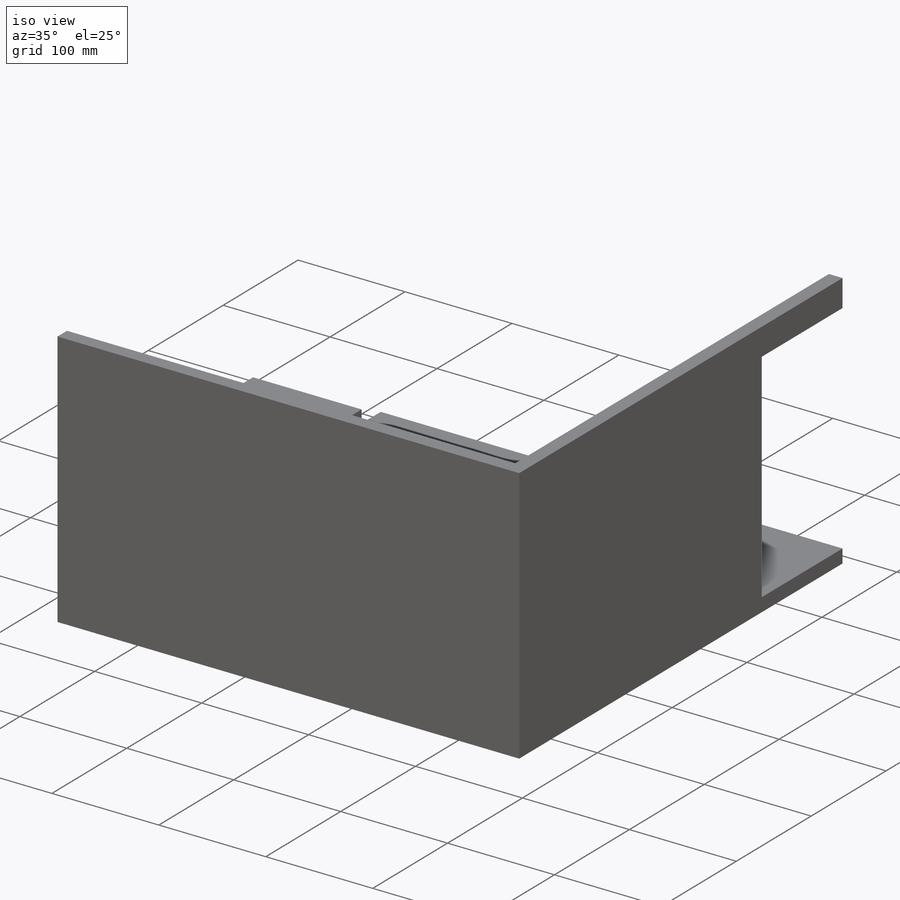
[diagram: iso view]
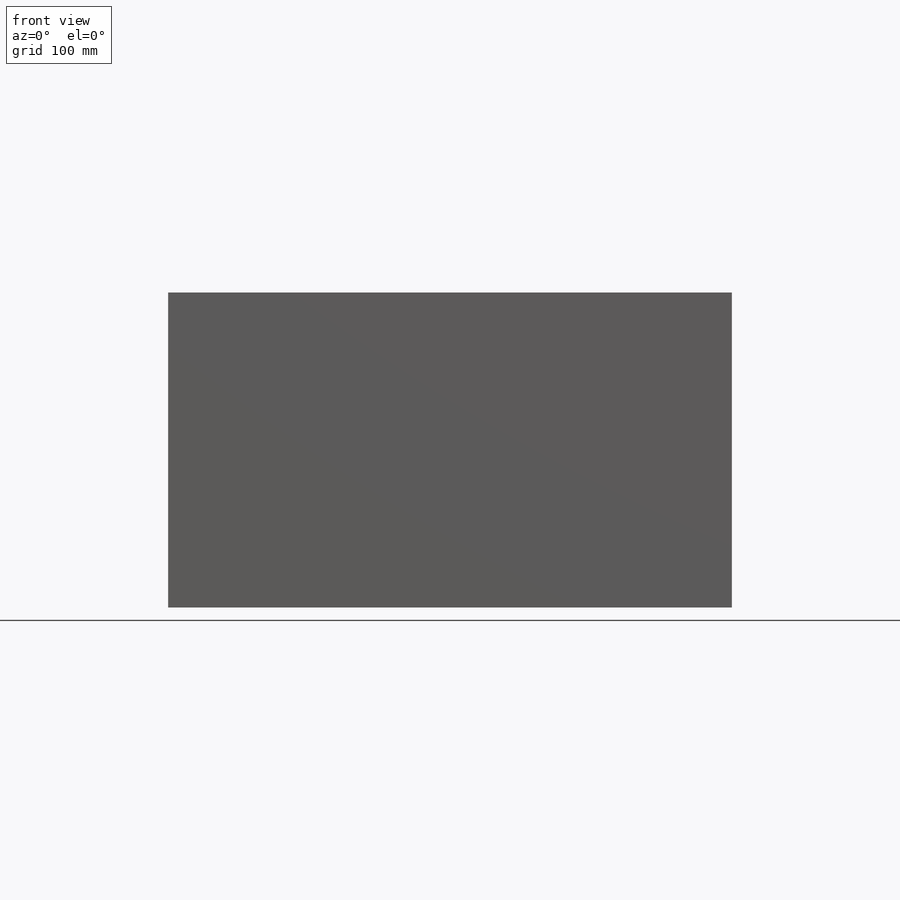
[diagram: front view]
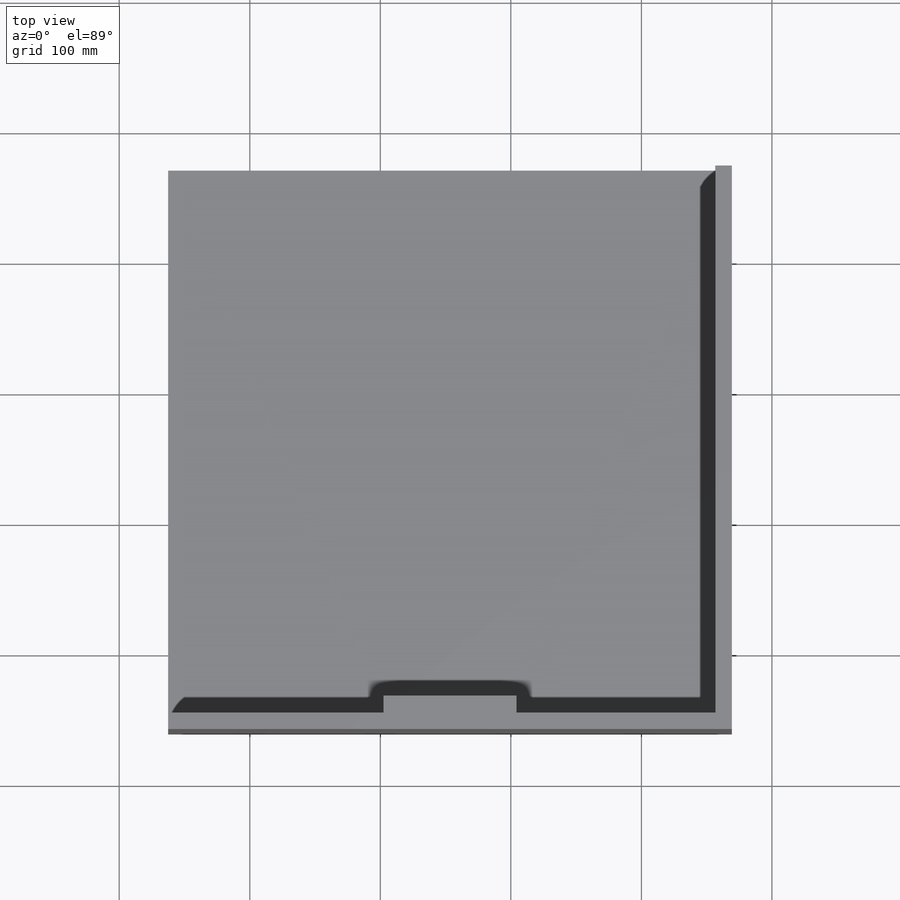
[diagram: top view]
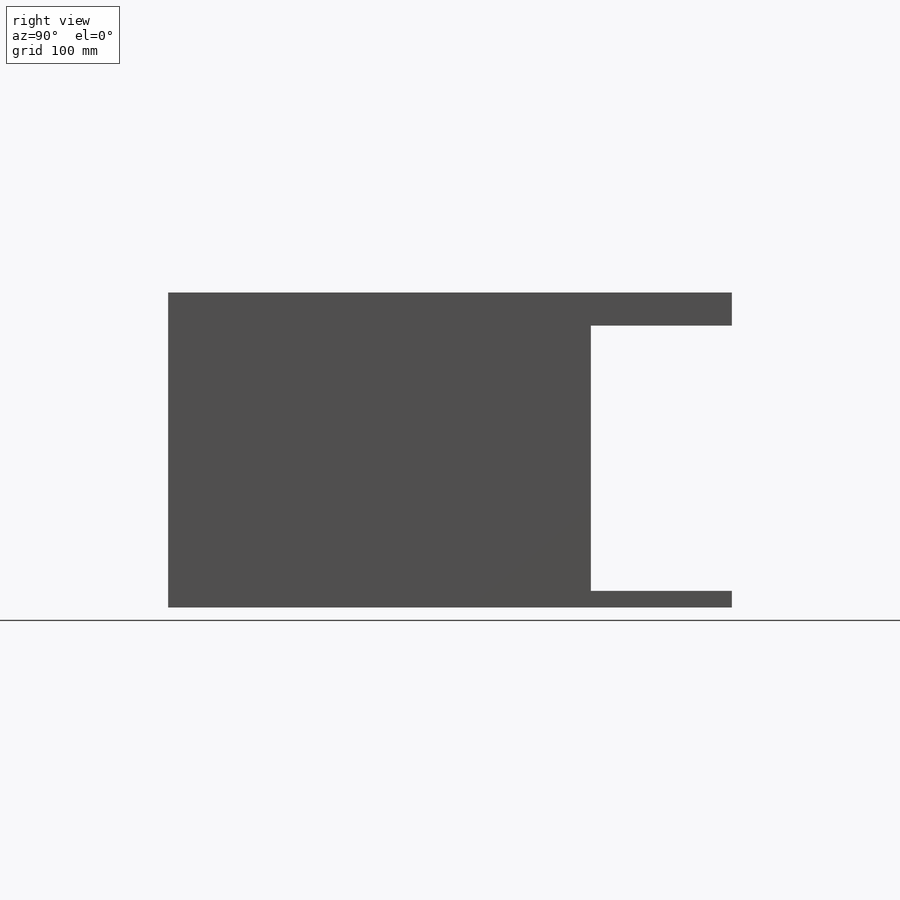
[diagram: right view]
SOLIDWORKS PART (.sldprt)
format: sldprt  version: not decoded by parser v0  size: 121,344 bytes
history: native  units: mm
features: sketch x5, extrude x2, cut_extrude x2, material x1 (+13 scaffold rows collapsed)
feature tree (23):
  scaffold x13  (default folders/planes/origin — collapsed)
  material  "Material <not specified>"
  sketch  "Sketch1"  dims[c1.D1=431.8mm c1.D2=431.8mm c2.D1=228.6mm c2.D5=12.7mm c2.D6=2.54mm c2.D7=5.0mm]
  sketch  "Sketch2"
  extrude  "Extrude1"  Depth=12.7mm
  sketch  "Sketch3"
  cut_extrude  "Cut-Extrude1"  [1 undecoded]
  sketch  "Sketch4"  dims[D1=50.8mm D2=25.4mm D3=50.8mm]
  extrude  "Extrude2"  [1 undecoded]
  sketch  "Sketch5"  dims[D1=311.15mm]
  cut_extrude  "Cut-Extrude2"  Depth=203.2mm
decode coverage: 5 of 9 modeling features carry decoded parameters
note: 2 parameter values undecoded
note: suppression state not decoded; provenance and decode notes live in map.json
